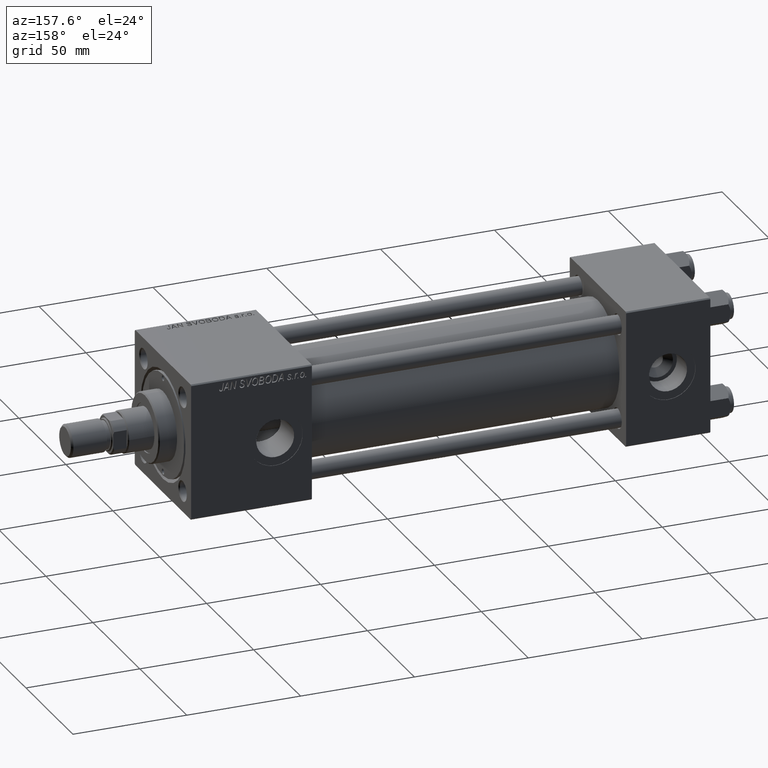
[diagram: clean part render]
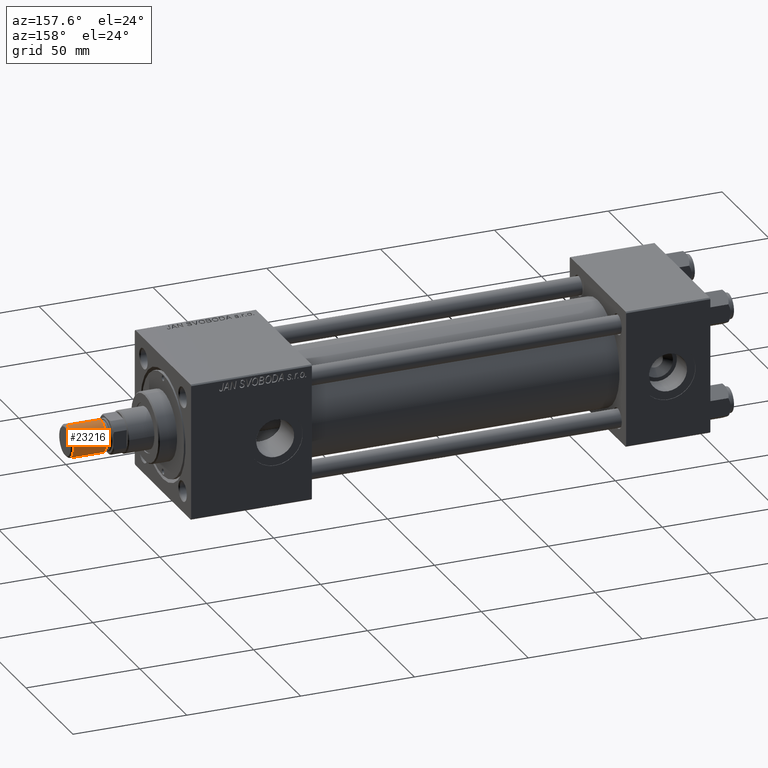
[diagram: same view with one face highlighted and labeled with its STEP entity id]
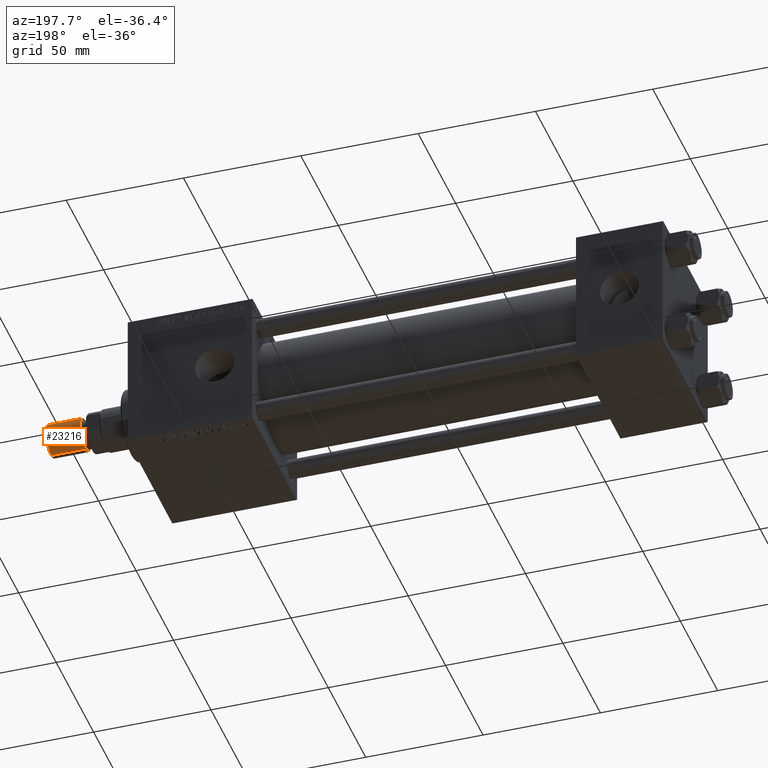
[diagram: same view with one face highlighted and labeled with its STEP entity id]
A machine part, auxiliary view. The second image highlights one B-rep face of the part: STEP entity #23216.
A second angle (auxiliary view) of the same face is appended — the face is thin or edge-on in the first view.
In plain terms, the highlighted cylindrical surface (edge-blend (fillet) strip) has radius 7 mm, axis along (1, -0, -0).
Its self-contained STEP definition (entity closure, byte-faithful):
#5356 = DIRECTION ( 'NONE',  ( -0.000000000000000000, -0.000000000000000000, 1.000000000000000000 ) ) ;
#6256 = CARTESIAN_POINT ( 'NONE',  ( -7.000000000000000000, 0.000000000000000000, 0.8000000000000020428 ) ) ;
#6767 = CARTESIAN_POINT ( 'NONE',  ( 7.000000000000000000, 8.572527594031473190E-16, 0.8000000000000020428 ) ) ;
#8509 = VERTEX_POINT ( 'NONE', #6256 ) ;
#8534 = DIRECTION ( 'NONE',  ( 1.000000000000000000, 0.000000000000000000, 0.000000000000000000 ) ) ;
#11602 = EDGE_CURVE ( 'NONE', #19864, #8509, #39757, .T. ) ;
#12032 = VERTEX_POINT ( 'NONE', #20690 ) ;
#12304 = EDGE_CURVE ( 'NONE', #12032, #31761, #38949, .T. ) ;
#13974 = DIRECTION ( 'NONE',  ( -1.000000000000000000, 0.000000000000000000, 0.000000000000000000 ) ) ;
#14480 = DIRECTION ( 'NONE',  ( 0.000000000000000000, 0.000000000000000000, 1.000000000000000000 ) ) ;
#15893 = DIRECTION ( 'NONE',  ( -0.000000000000000000, -0.000000000000000000, -1.000000000000000000 ) ) ;
#16428 = CARTESIAN_POINT ( 'NONE',  ( -7.000000000000000000, 0.000000000000000000, 15.50000000000000000 ) ) ;
#18706 = VECTOR ( 'NONE', #29056, 1000.000000000000000 ) ;
#19547 = ORIENTED_EDGE ( 'NONE', *, *, #27056, .T. ) ;
#19864 = VERTEX_POINT ( 'NONE', #6767 ) ;
#20690 = CARTESIAN_POINT ( 'NONE',  ( 7.000000000000000000, 8.572527594031473190E-16, 15.50000000000000000 ) ) ;
#21226 = ORIENTED_EDGE ( 'NONE', *, *, #11602, .T. ) ;
#21767 = CYLINDRICAL_SURFACE ( 'NONE', #21974, 7.000000000000000000 ) ;
#21974 = AXIS2_PLACEMENT_3D ( 'NONE', #25517, #34311, #13974 ) ;
#23091 = EDGE_CURVE ( 'NONE', #31761, #8509, #27939, .T. ) ;
#23216 = ADVANCED_FACE ( 'NONE', ( #45562 ), #21767, .T. ) ;
#25517 = CARTESIAN_POINT ( 'NONE',  ( 0.000000000000000000, 0.000000000000000000, 15.50000000000000000 ) ) ;
#25693 = CARTESIAN_POINT ( 'NONE',  ( 0.000000000000000000, 0.000000000000000000, 0.8000000000000020428 ) ) ;
#27056 = EDGE_CURVE ( 'NONE', #12032, #19864, #29846, .T. ) ;
#27939 = LINE ( 'NONE', #16428, #46737 ) ;
#28996 = ORIENTED_EDGE ( 'NONE', *, *, #23091, .F. ) ;
#29056 = DIRECTION ( 'NONE',  ( -0.000000000000000000, -0.000000000000000000, -1.000000000000000000 ) ) ;
#29846 = LINE ( 'NONE', #37343, #18706 ) ;
#30419 = EDGE_LOOP ( 'NONE', ( #50591, #19547, #21226, #28996 ) ) ;
#31761 = VERTEX_POINT ( 'NONE', #39765 ) ;
#34311 = DIRECTION ( 'NONE',  ( -0.000000000000000000, -0.000000000000000000, -1.000000000000000000 ) ) ;
#34819 = CARTESIAN_POINT ( 'NONE',  ( 0.000000000000000000, 0.000000000000000000, 15.50000000000000000 ) ) ;
#36400 = AXIS2_PLACEMENT_3D ( 'NONE', #34819, #14480, #8534 ) ;
#37343 = CARTESIAN_POINT ( 'NONE',  ( 7.000000000000000000, 8.572527594031473190E-16, 15.50000000000000000 ) ) ;
#37977 = DIRECTION ( 'NONE',  ( 1.000000000000000000, 0.000000000000000000, 0.000000000000000000 ) ) ;
#38949 = CIRCLE ( 'NONE', #36400, 7.000000000000000000 ) ;
#39757 = CIRCLE ( 'NONE', #50864, 7.000000000000000000 ) ;
#39765 = CARTESIAN_POINT ( 'NONE',  ( -7.000000000000000000, 0.000000000000000000, 15.50000000000000000 ) ) ;
#45562 = FACE_OUTER_BOUND ( 'NONE', #30419, .T. ) ;
#46737 = VECTOR ( 'NONE', #15893, 1000.000000000000000 ) ;
#50591 = ORIENTED_EDGE ( 'NONE', *, *, #12304, .F. ) ;
#50864 = AXIS2_PLACEMENT_3D ( 'NONE', #25693, #5356, #37977 ) ;